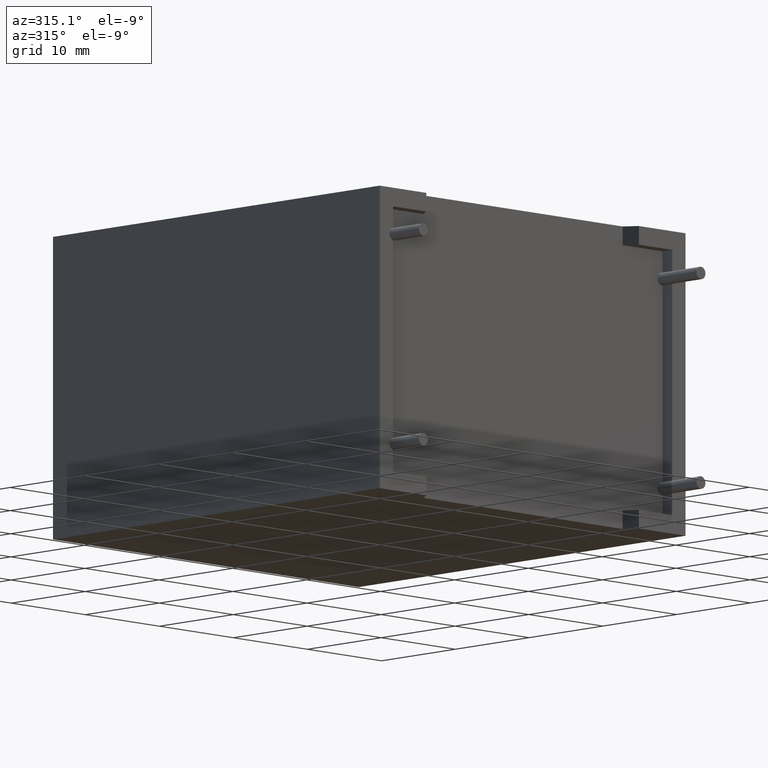
[diagram: clean part render]
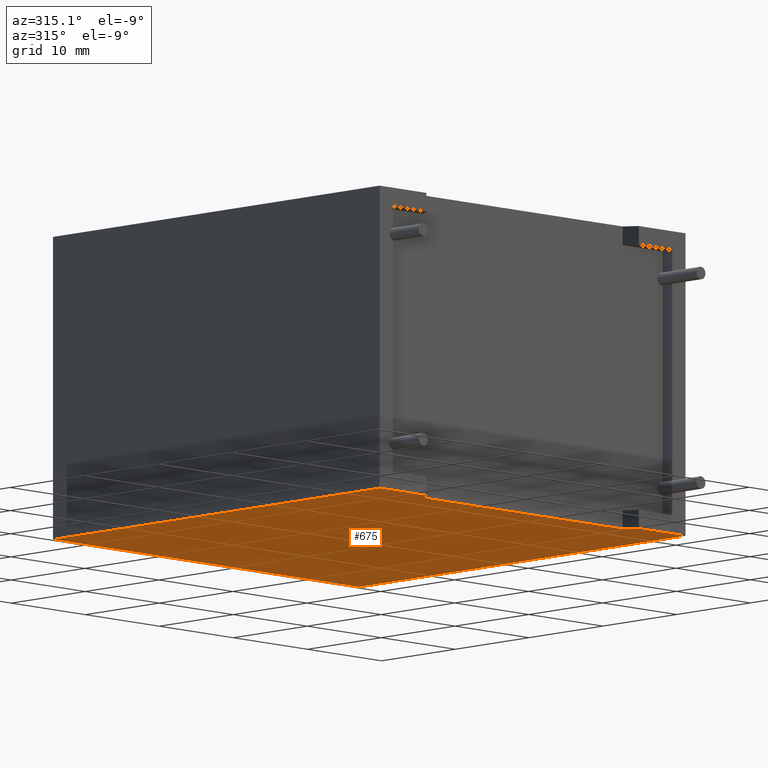
[diagram: same view with one face highlighted and labeled with its STEP entity id]
A machine part, auxiliary view. The second image highlights one B-rep face of the part: STEP entity #675.
In plain terms, the highlighted planar face has unit normal (0, 0, -1).
Its self-contained STEP definition (entity closure, byte-faithful):
#29 = CARTESIAN_POINT ( 'NONE',  ( 0.0000000000000000000, 44.29999999999999700, 0.0000000000000000000 ) ) ;
#36 = ORIENTED_EDGE ( 'NONE', *, *, #2405, .F. ) ;
#69 = VECTOR ( 'NONE', #1826, 1000.000000000000000 ) ;
#70 = EDGE_CURVE ( 'NONE', #2676, #1088, #2912, .T. ) ;
#102 = LINE ( 'NONE', #3221, #1185 ) ;
#272 = LINE ( 'NONE', #29, #1038 ) ;
#305 = VECTOR ( 'NONE', #2636, 1000.000000000000000 ) ;
#343 = VECTOR ( 'NONE', #1917, 1000.000000000000000 ) ;
#382 = VECTOR ( 'NONE', #2091, 1000.000000000000000 ) ;
#406 = CARTESIAN_POINT ( 'NONE',  ( 7.200000000000000200, 1.302420000000003200, 0.0000000000000000000 ) ) ;
#427 = CARTESIAN_POINT ( 'NONE',  ( 0.0000000000000000000, 0.0000000000000000000, 0.0000000000000000000 ) ) ;
#515 = VERTEX_POINT ( 'NONE', #589 ) ;
#551 = VECTOR ( 'NONE', #1195, 1000.000000000000000 ) ;
#570 = VERTEX_POINT ( 'NONE', #3049 ) ;
#582 = LINE ( 'NONE', #3196, #382 ) ;
#589 = CARTESIAN_POINT ( 'NONE',  ( 6.299999999999998900, 1.543054966925664900E-015, 0.0000000000000000000 ) ) ;
#675 = ADVANCED_FACE ( 'NONE', ( #1152 ), #3340, .T. ) ;
#682 = DIRECTION ( 'NONE',  ( 0.0000000000000000000, 0.0000000000000000000, -1.000000000000000000 ) ) ;
#845 = VERTEX_POINT ( 'NONE', #1029 ) ;
#888 = EDGE_CURVE ( 'NONE', #570, #1783, #582, .T. ) ;
#909 = DIRECTION ( 'NONE',  ( -1.000000000000000000, 0.0000000000000000000, -0.0000000000000000000 ) ) ;
#919 = ORIENTED_EDGE ( 'NONE', *, *, #1336, .F. ) ;
#955 = ORIENTED_EDGE ( 'NONE', *, *, #70, .T. ) ;
#1029 = CARTESIAN_POINT ( 'NONE',  ( 41.29999999999999700, 0.0000000000000000000, 0.0000000000000000000 ) ) ;
#1038 = VECTOR ( 'NONE', #1050, 1000.000000000000000 ) ;
#1045 = ORIENTED_EDGE ( 'NONE', *, *, #3350, .T. ) ;
#1050 = DIRECTION ( 'NONE',  ( -1.000000000000000000, -0.0000000000000000000, -0.0000000000000000000 ) ) ;
#1058 = DIRECTION ( 'NONE',  ( 0.5684943700456184200, -0.8226871527053497600, 0.0000000000000000000 ) ) ;
#1088 = VERTEX_POINT ( 'NONE', #406 ) ;
#1126 = CARTESIAN_POINT ( 'NONE',  ( 7.200000000000000200, 1.302420000000003200, 0.0000000000000000000 ) ) ;
#1152 = FACE_OUTER_BOUND ( 'NONE', #2014, .T. ) ;
#1185 = VECTOR ( 'NONE', #1058, 999.9999999999998900 ) ;
#1195 = DIRECTION ( 'NONE',  ( -1.000000000000000000, -1.289757231209522600E-016, 0.0000000000000000000 ) ) ;
#1217 = VECTOR ( 'NONE', #1427, 999.9999999999998900 ) ;
#1307 = EDGE_CURVE ( 'NONE', #2002, #570, #272, .T. ) ;
#1336 = EDGE_CURVE ( 'NONE', #1783, #515, #2372, .T. ) ;
#1381 = VERTEX_POINT ( 'NONE', #2180 ) ;
#1427 = DIRECTION ( 'NONE',  ( -0.5684943700456184200, -0.8226871527053497600, 0.0000000000000000000 ) ) ;
#1504 = ORIENTED_EDGE ( 'NONE', *, *, #2505, .F. ) ;
#1581 = CARTESIAN_POINT ( 'NONE',  ( 0.0000000000000000000, 0.0000000000000000000, 0.0000000000000000000 ) ) ;
#1675 = ORIENTED_EDGE ( 'NONE', *, *, #1307, .F. ) ;
#1766 = CARTESIAN_POINT ( 'NONE',  ( 20.64999999999999500, 1.302420000000005000, 0.0000000000000000000 ) ) ;
#1783 = VERTEX_POINT ( 'NONE', #2305 ) ;
#1819 = LINE ( 'NONE', #2075, #305 ) ;
#1826 = DIRECTION ( 'NONE',  ( 1.000000000000000000, 0.0000000000000000000, 0.0000000000000000000 ) ) ;
#1917 = DIRECTION ( 'NONE',  ( 0.0000000000000000000, 1.000000000000000000, 0.0000000000000000000 ) ) ;
#2002 = VERTEX_POINT ( 'NONE', #2982 ) ;
#2014 = EDGE_LOOP ( 'NONE', ( #1504, #955, #1045, #919, #2910, #1675, #3405, #36 ) ) ;
#2075 = CARTESIAN_POINT ( 'NONE',  ( 0.0000000000000000000, 0.0000000000000000000, 0.0000000000000000000 ) ) ;
#2091 = DIRECTION ( 'NONE',  ( -0.0000000000000000000, -1.000000000000000000, -0.0000000000000000000 ) ) ;
#2094 = LINE ( 'NONE', #1126, #1217 ) ;
#2180 = CARTESIAN_POINT ( 'NONE',  ( 34.99999999999998600, 1.543054966925664900E-015, 0.0000000000000000000 ) ) ;
#2270 = LINE ( 'NONE', #2703, #343 ) ;
#2305 = CARTESIAN_POINT ( 'NONE',  ( 0.0000000000000000000, 0.0000000000000000000, 0.0000000000000000000 ) ) ;
#2372 = LINE ( 'NONE', #1581, #69 ) ;
#2405 = EDGE_CURVE ( 'NONE', #1381, #845, #1819, .T. ) ;
#2482 = CARTESIAN_POINT ( 'NONE',  ( 34.09999999999998700, 1.302420000000003200, 0.0000000000000000000 ) ) ;
#2505 = EDGE_CURVE ( 'NONE', #2676, #1381, #102, .T. ) ;
#2593 = EDGE_CURVE ( 'NONE', #845, #2002, #2270, .T. ) ;
#2636 = DIRECTION ( 'NONE',  ( 1.000000000000000000, 0.0000000000000000000, 0.0000000000000000000 ) ) ;
#2676 = VERTEX_POINT ( 'NONE', #2482 ) ;
#2703 = CARTESIAN_POINT ( 'NONE',  ( 41.29999999999999700, 0.0000000000000000000, 0.0000000000000000000 ) ) ;
#2838 = AXIS2_PLACEMENT_3D ( 'NONE', #427, #682, #909 ) ;
#2910 = ORIENTED_EDGE ( 'NONE', *, *, #888, .F. ) ;
#2912 = LINE ( 'NONE', #1766, #551 ) ;
#2982 = CARTESIAN_POINT ( 'NONE',  ( 41.29999999999999700, 44.29999999999999700, 0.0000000000000000000 ) ) ;
#3049 = CARTESIAN_POINT ( 'NONE',  ( 0.0000000000000000000, 44.29999999999999700, 0.0000000000000000000 ) ) ;
#3196 = CARTESIAN_POINT ( 'NONE',  ( 0.0000000000000000000, 0.0000000000000000000, 0.0000000000000000000 ) ) ;
#3221 = CARTESIAN_POINT ( 'NONE',  ( 34.09999999999998700, 1.302420000000003200, 0.0000000000000000000 ) ) ;
#3340 = PLANE ( 'NONE',  #2838 ) ;
#3350 = EDGE_CURVE ( 'NONE', #1088, #515, #2094, .T. ) ;
#3405 = ORIENTED_EDGE ( 'NONE', *, *, #2593, .F. ) ;